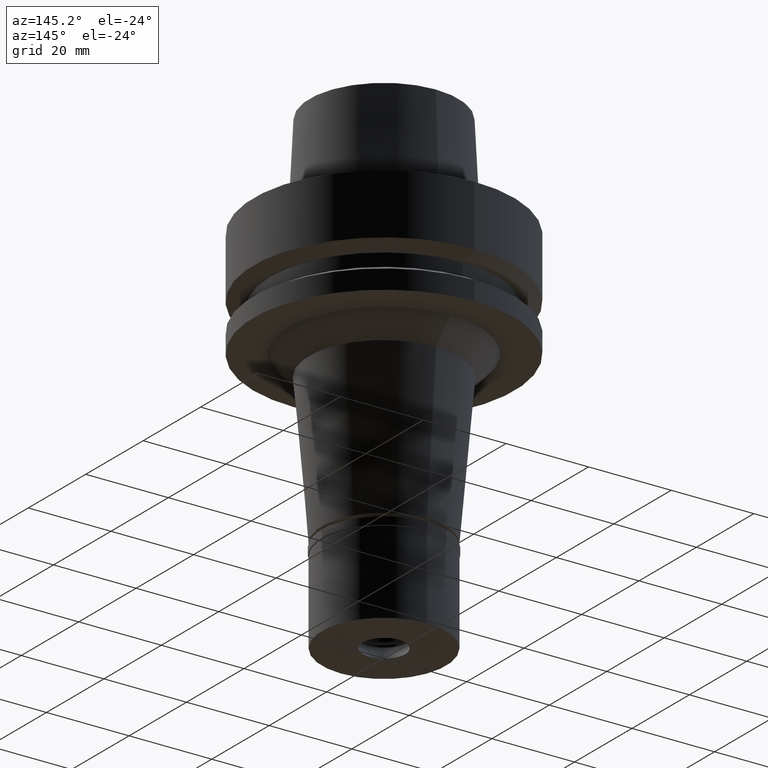
[diagram: clean part render]
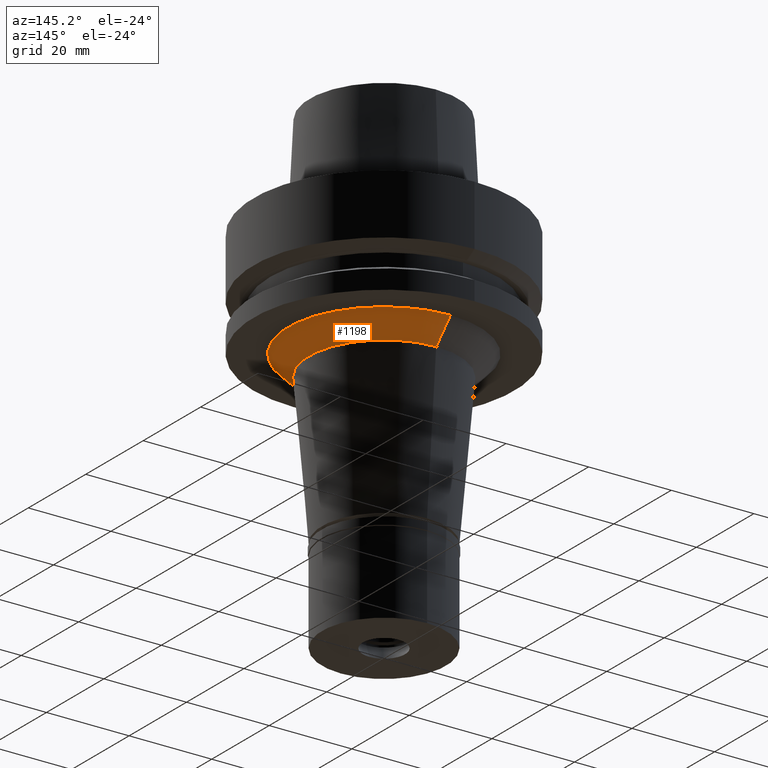
[diagram: same view with one face highlighted and labeled with its STEP entity id]
A machine part, auxiliary view. The second image highlights one B-rep face of the part: STEP entity #1198.
In plain terms, the highlighted conical surface has half-angle 45 deg.
Its self-contained STEP definition (entity closure, byte-faithful):
#5 = AXIS2_PLACEMENT_3D ( 'NONE', #1716, #1249, #115 ) ;
#115 = DIRECTION ( 'NONE',  ( 0.0000000000000000000, 1.000000000000000000, 0.0000000000000000000 ) ) ;
#124 = VERTEX_POINT ( 'NONE', #1275 ) ;
#312 = AXIS2_PLACEMENT_3D ( 'NONE', #1308, #424, #1324 ) ;
#313 = EDGE_CURVE ( 'NONE', #920, #1814, #1960, .T. ) ;
#424 = DIRECTION ( 'NONE',  ( 0.0000000000000000000, 0.0000000000000000000, 1.000000000000000000 ) ) ;
#525 = ORIENTED_EDGE ( 'NONE', *, *, #2487, .T. ) ;
#544 = EDGE_CURVE ( 'NONE', #920, #2027, #652, .T. ) ;
#652 = LINE ( 'NONE', #2187, #2506 ) ;
#834 = CARTESIAN_POINT ( 'NONE',  ( 0.0000000000000000000, -23.16708961964000224, -26.00000000000000000 ) ) ;
#868 = LINE ( 'NONE', #1563, #1455 ) ;
#920 = VERTEX_POINT ( 'NONE', #1329 ) ;
#996 = EDGE_CURVE ( 'NONE', #1814, #124, #868, .T. ) ;
#1025 = ORIENTED_EDGE ( 'NONE', *, *, #996, .T. ) ;
#1077 = AXIS2_PLACEMENT_3D ( 'NONE', #1977, #1284, #1536 ) ;
#1198 = ADVANCED_FACE ( 'NONE', ( #2134 ), #1268, .T. ) ;
#1249 = DIRECTION ( 'NONE',  ( 0.0000000000000000000, 0.0000000000000000000, 1.000000000000000000 ) ) ;
#1268 = CONICAL_SURFACE ( 'NONE', #5, 20.66708961964000224, 0.7853981633972997312 ) ;
#1275 = CARTESIAN_POINT ( 'NONE',  ( 0.0000000000000000000, -18.16708961963999869, -31.00000000000000000 ) ) ;
#1284 = DIRECTION ( 'NONE',  ( 0.0000000000000000000, 0.0000000000000000000, -1.000000000000000000 ) ) ;
#1308 = CARTESIAN_POINT ( 'NONE',  ( 0.0000000000000000000, 0.0000000000000000000, -31.00000000000000000 ) ) ;
#1324 = DIRECTION ( 'NONE',  ( 0.0000000000000000000, -1.000000000000000000, 0.0000000000000000000 ) ) ;
#1329 = CARTESIAN_POINT ( 'NONE',  ( 0.0000000000000000000, 23.16708961964000224, -26.00000000000000000 ) ) ;
#1455 = VECTOR ( 'NONE', #1606, 1000.000000000000000 ) ;
#1536 = DIRECTION ( 'NONE',  ( 0.0000000000000000000, 1.000000000000000000, 0.0000000000000000000 ) ) ;
#1563 = CARTESIAN_POINT ( 'NONE',  ( 0.0000000000000000000, -23.16708961964000224, -26.00000000000000000 ) ) ;
#1606 = DIRECTION ( 'NONE',  ( 0.0000000000000000000, 0.7071067811865969777, -0.7071067811864980568 ) ) ;
#1664 = EDGE_LOOP ( 'NONE', ( #1940, #1025, #525, #2125 ) ) ;
#1716 = CARTESIAN_POINT ( 'NONE',  ( 0.0000000000000000000, 0.0000000000000000000, -28.50000000000000000 ) ) ;
#1814 = VERTEX_POINT ( 'NONE', #834 ) ;
#1940 = ORIENTED_EDGE ( 'NONE', *, *, #313, .T. ) ;
#1950 = CIRCLE ( 'NONE', #312, 18.16708961963999869 ) ;
#1960 = CIRCLE ( 'NONE', #1077, 23.16708961964000224 ) ;
#1977 = CARTESIAN_POINT ( 'NONE',  ( 0.0000000000000000000, 0.0000000000000000000, -26.00000000000000000 ) ) ;
#2026 = DIRECTION ( 'NONE',  ( 0.0000000000000000000, -0.7071067811865969777, -0.7071067811864980568 ) ) ;
#2027 = VERTEX_POINT ( 'NONE', #2212 ) ;
#2125 = ORIENTED_EDGE ( 'NONE', *, *, #544, .F. ) ;
#2134 = FACE_OUTER_BOUND ( 'NONE', #1664, .T. ) ;
#2187 = CARTESIAN_POINT ( 'NONE',  ( 0.0000000000000000000, 23.16708961964000224, -26.00000000000000000 ) ) ;
#2212 = CARTESIAN_POINT ( 'NONE',  ( 0.0000000000000000000, 18.16708961963999869, -31.00000000000000000 ) ) ;
#2487 = EDGE_CURVE ( 'NONE', #124, #2027, #1950, .T. ) ;
#2506 = VECTOR ( 'NONE', #2026, 1000.000000000000000 ) ;